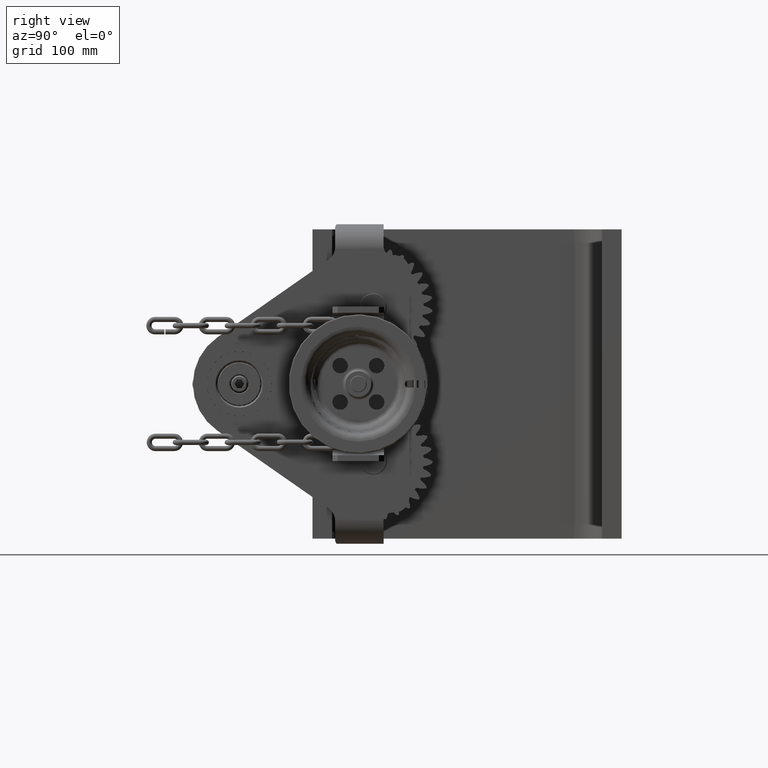
[diagram: clean part render]
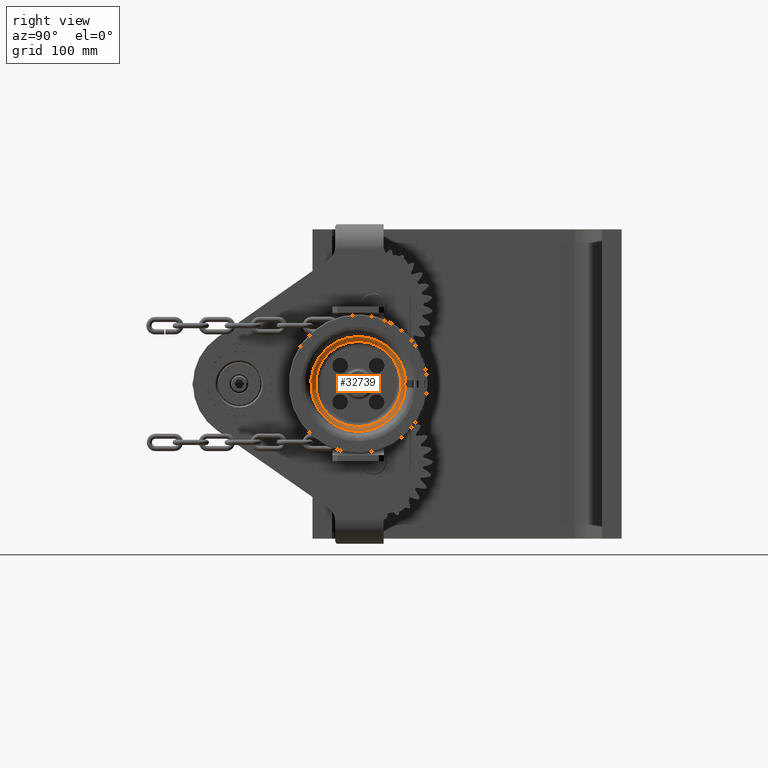
[diagram: same view with one face highlighted and labeled with its STEP entity id]
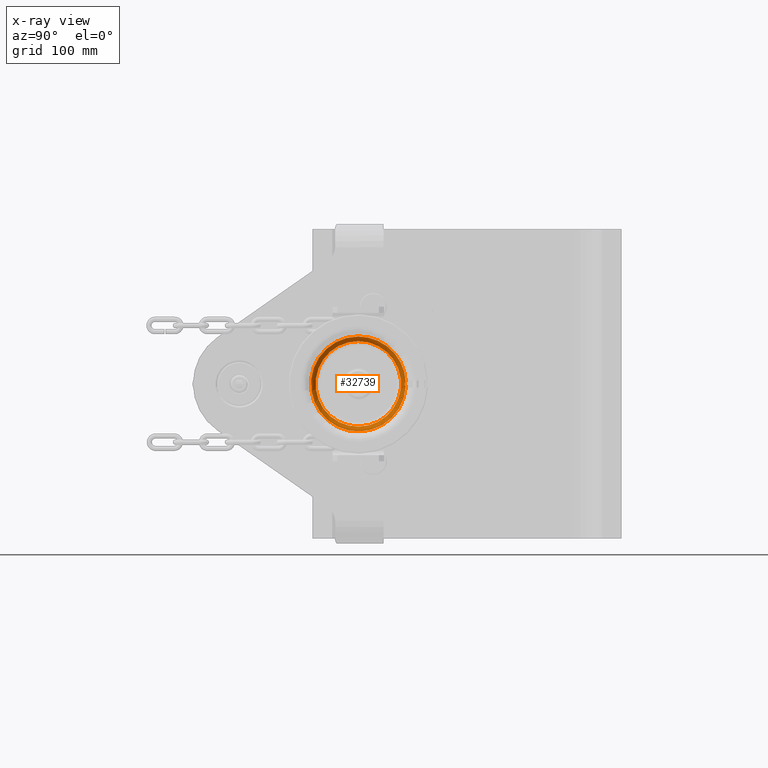
[diagram: x-ray of the same camera — body ghosted, the highlighted face saturated]
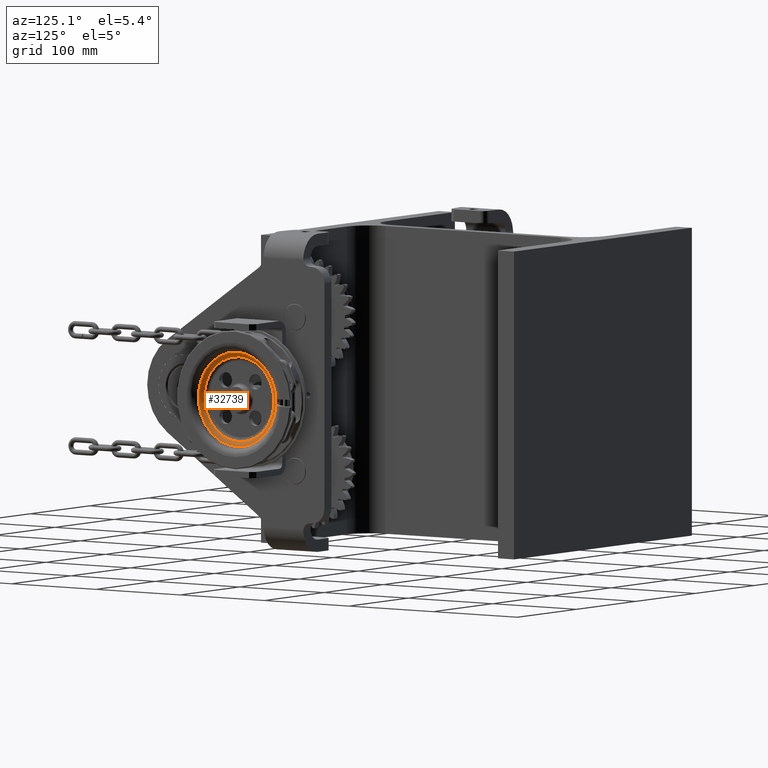
[diagram: same view with one face highlighted and labeled with its STEP entity id]
A machine part, right view. The second image highlights one B-rep face of the part: STEP entity #32739.
The next image is the same camera in x-ray: the body ghosted, the highlighted face saturated — about 0% of this face is hidden behind the body in this view.
A second angle (auxiliary view) of the same face is appended — the face is thin or edge-on in the first view.
In plain terms, the highlighted toroidal blend (fillet) surface has major radius 48.5 mm and minor (blend) radius 8.5 mm.
Its self-contained STEP definition (entity closure, byte-faithful):
#3439 = CARTESIAN_POINT ( 'NONE',  ( 253.6434507915225000, -59.52113448123884600, -2.448331331080709100 ) ) ;
#3688 = DIRECTION ( 'NONE',  ( -4.733165431326070800E-029, 1.120142750015010900E-057, 1.000000000000000000 ) ) ;
#4273 = VERTEX_POINT ( 'NONE', #43415 ) ;
#5476 = ORIENTED_EDGE ( 'NONE', *, *, #49231, .F. ) ;
#7630 = CARTESIAN_POINT ( 'NONE',  ( 250.2222222222218900, -105.5199999999999400, 41.43242493609491800 ) ) ;
#7634 = CARTESIAN_POINT ( 'NONE',  ( 253.6434507915225000, -59.52113448123884600, 2.448331331080653600 ) ) ;
#7764 = FACE_OUTER_BOUND ( 'NONE', #48918, .T. ) ;
#8512 = ORIENTED_EDGE ( 'NONE', *, *, #50820, .F. ) ;
#8822 = DIRECTION ( 'NONE',  ( -1.000000000000000000, 2.366582715663046600E-029, -4.733165431326070800E-029 ) ) ;
#8878 = AXIS2_PLACEMENT_3D ( 'NONE', #50012, #32935, #20002 ) ;
#11967 = CARTESIAN_POINT ( 'NONE',  ( 253.4500501506354900, -60.06397086661477400, 1.741809548091875800 ) ) ;
#12148 = CARTESIAN_POINT ( 'NONE',  ( 253.2458896693547400, -60.52015816095136100, -0.2255938912752529500 ) ) ;
#14497 = AXIS2_PLACEMENT_3D ( 'NONE', #51892, #8822, #3688 ) ;
#14562 = CIRCLE ( 'NONE', #8878, 46.06397676405953900 ) ;
#16492 = CARTESIAN_POINT ( 'NONE',  ( 253.2987284570015700, -60.40965585280579800, -0.9015049907145226100 ) ) ;
#18130 = B_SPLINE_CURVE_WITH_KNOTS ( 'NONE', 3,
 ( #7634, #37943, #34356, #11967, #24847, #21037, #51079, #55462, #29429, #12148, #42482, #16492, #51452, #46838, #20844, #25222, #55649, #29626 ),
 .UNSPECIFIED., .F., .F.,
 ( 4, 2, 2, 2, 2, 2, 2, 2, 4 ),
 ( 9.171273438744803700E-007, 0.0006839626874920385400, 0.001367008247640202500, 0.002050053807788366600, 0.002733099367936530800, 0.003416144928084694900, 0.004099190488232858600, 0.004782236048381022800, 0.005465281608529186900 ),
 .UNSPECIFIED. ) ;
#19475 = AXIS2_PLACEMENT_3D ( 'NONE', #31771, #32350, #36518 ) ;
#20002 = DIRECTION ( 'NONE',  ( 0.0000000000000000000, 0.0000000000000000000, 1.000000000000000000 ) ) ;
#20844 = CARTESIAN_POINT ( 'NONE',  ( 253.4491138369967600, -60.06633218853338000, -1.737905530323635900 ) ) ;
#21037 = CARTESIAN_POINT ( 'NONE',  ( 253.3300420328166600, -60.34261621983711200, 1.123066110408386100 ) ) ;
#24656 = EDGE_CURVE ( 'NONE', #25547, #25547, #54818, .T. ) ;
#24847 = CARTESIAN_POINT ( 'NONE',  ( 253.4053618849305000, -60.17062915889967200, 1.540971101534422700 ) ) ;
#25222 = CARTESIAN_POINT ( 'NONE',  ( 253.5438189678430100, -59.81918513078460400, -2.113058929329530800 ) ) ;
#25547 = VERTEX_POINT ( 'NONE', #7630 ) ;
#29429 = CARTESIAN_POINT ( 'NONE',  ( 253.2460445442716800, -60.51984013717657300, 0.2304750955373455800 ) ) ;
#29626 = CARTESIAN_POINT ( 'NONE',  ( 253.6434507915225000, -59.52113448123884600, -2.448331331080709100 ) ) ;
#30147 = FACE_OUTER_BOUND ( 'NONE', #37783, .T. ) ;
#31771 = CARTESIAN_POINT ( 'NONE',  ( 250.2222222222218900, -105.5199999999999400, -1.734723475976807100E-015 ) ) ;
#32350 = DIRECTION ( 'NONE',  ( -1.000000000000000000, 2.366582715663046600E-029, -4.733165431326070800E-029 ) ) ;
#32404 = ORIENTED_EDGE ( 'NONE', *, *, #24656, .T. ) ;
#32739 = ADVANCED_FACE ( 'NONE', ( #7764, #30147 ), #35545, .T. ) ;
#32935 = DIRECTION ( 'NONE',  ( -1.000000000000000000, 2.366582715663046600E-029, -4.733165431326070800E-029 ) ) ;
#34356 = CARTESIAN_POINT ( 'NONE',  ( 253.5440548781886000, -59.81848633045437000, 2.113795968603547700 ) ) ;
#35545 = TOROIDAL_SURFACE ( 'NONE', #14497, 48.50000000000026300, 8.500000000000063900 ) ;
#36518 = DIRECTION ( 'NONE',  ( 0.0000000000000000000, 0.0000000000000000000, 1.000000000000000000 ) ) ;
#37783 = EDGE_LOOP ( 'NONE', ( #32404 ) ) ;
#37943 = CARTESIAN_POINT ( 'NONE',  ( 253.5937995871224200, -59.67877814785553200, 2.287287764256197100 ) ) ;
#42482 = CARTESIAN_POINT ( 'NONE',  ( 253.2567023276145900, -60.49824433313245500, -0.4519893890075494800 ) ) ;
#43415 = CARTESIAN_POINT ( 'NONE',  ( 253.6434507915225000, -59.52113448123884600, 2.448331331080653600 ) ) ;
#46838 = CARTESIAN_POINT ( 'NONE',  ( 253.4045097708473400, -60.17262552134786100, -1.536759186382776500 ) ) ;
#48918 = EDGE_LOOP ( 'NONE', ( #5476, #8512 ) ) ;
#49231 = EDGE_CURVE ( 'NONE', #4273, #55022, #18130, .T. ) ;
#50012 = CARTESIAN_POINT ( 'NONE',  ( 253.6434507915225000, -105.5199999999999400, -1.734723475976807100E-015 ) ) ;
#50820 = EDGE_CURVE ( 'NONE', #55022, #4273, #14562, .T. ) ;
#51079 = CARTESIAN_POINT ( 'NONE',  ( 253.2995403124944600, -60.40791523392482500, 0.9074859709528106900 ) ) ;
#51452 = CARTESIAN_POINT ( 'NONE',  ( 253.3296243822473200, -60.34351840086165500, -1.120224046304533600 ) ) ;
#51892 = CARTESIAN_POINT ( 'NONE',  ( 245.4999999999997400, -105.5199999999999400, -1.734723475970890600E-015 ) ) ;
#54818 = CIRCLE ( 'NONE', #19475, 41.43242493609491800 ) ;
#55022 = VERTEX_POINT ( 'NONE', #3439 ) ;
#55462 = CARTESIAN_POINT ( 'NONE',  ( 253.2574309411894500, -60.49673668698738300, 0.4623877475579080700 ) ) ;
#55649 = CARTESIAN_POINT ( 'NONE',  ( 253.5937808058896200, -59.67883777868302500, -2.287226847370925900 ) ) ;